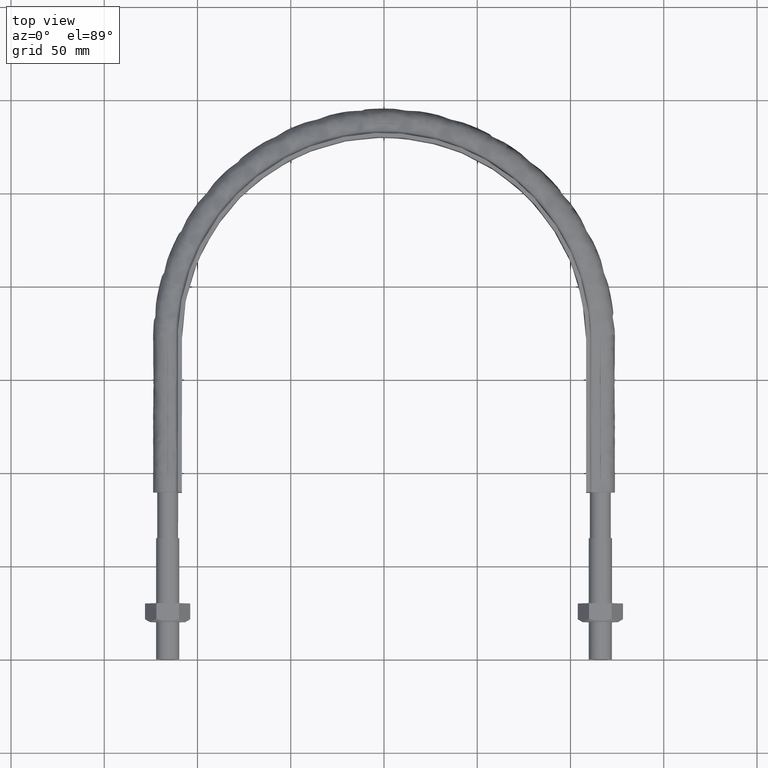
[diagram: clean part render]
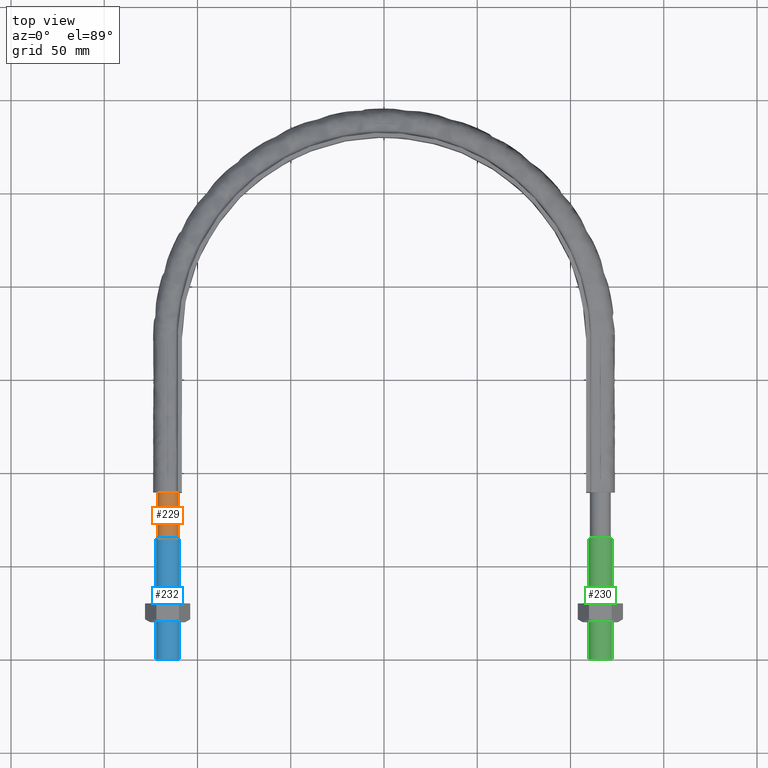
[diagram: same view with three faces highlighted in distinct colors, each labeled with its STEP entity id]
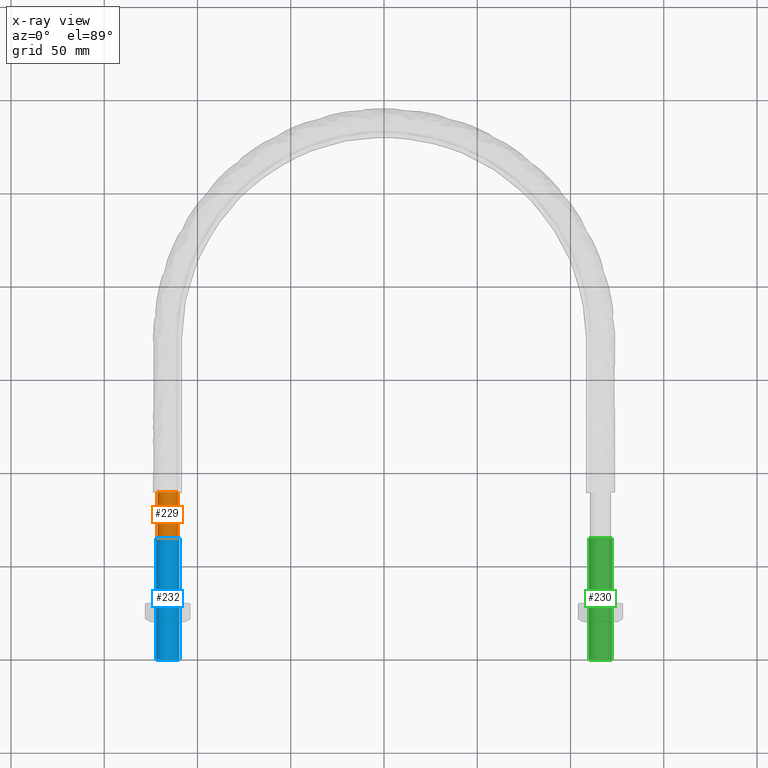
[diagram: x-ray of the same camera — body ghosted, the three highlighted faces saturated]
A machine part, top view with three faces highlighted in distinct colors.
The next image is the same camera in x-ray (body ghosted, the three faces saturated) — at least one of them is partly hidden behind the body in this view.
Their STEP definitions:

[orange] entity #229 — the highlighted cylindrical surface (bore or boss wall) has radius 5.6 mm, axis along (0, 1, -0).
#229 = ADVANCED_FACE( '', ( #285, #286 ), #287, .T. );
#285 = FACE_OUTER_BOUND( '', #1286, .T. );
#286 = FACE_OUTER_BOUND( '', #1287, .T. );
#287 = CYLINDRICAL_SURFACE( '', #1288, 5.59999999999999 );
#1286 = EDGE_LOOP( '', ( #1453 ) );
#1287 = EDGE_LOOP( '', ( #1454, #1455, #1456, #1457, #1458, #1459, #1460, #1461 ) );
#1288 = AXIS2_PLACEMENT_3D( '', #1462, #1463, #1464 );
#1453 = ORIENTED_EDGE( '', *, *, #1685, .F. );
#1454 = ORIENTED_EDGE( '', *, *, #1684, .F. );
#1455 = ORIENTED_EDGE( '', *, *, #1683, .F. );
#1456 = ORIENTED_EDGE( '', *, *, #1682, .F. );
#1457 = ORIENTED_EDGE( '', *, *, #1681, .F. );
#1458 = ORIENTED_EDGE( '', *, *, #1680, .F. );
#1459 = ORIENTED_EDGE( '', *, *, #1679, .F. );
#1460 = ORIENTED_EDGE( '', *, *, #1678, .F. );
#1461 = ORIENTED_EDGE( '', *, *, #1677, .F. );
#1462 = CARTESIAN_POINT( '', ( -116.000000000000, 89.5000000000000, -2.74005671667757E-014 ) );
#1463 = DIRECTION( '', ( 2.44921270764475E-016, 1.00000000000000, -3.06151588455594E-016 ) );
#1464 = DIRECTION( '', ( 1.00000000000000, -2.44921270764475E-016, -1.50944387002457E-047 ) );
#1677 = EDGE_CURVE( '', #1779, #1780, #1781, .T. );
#1678 = EDGE_CURVE( '', #1780, #1782, #1783, .T. );
#1679 = EDGE_CURVE( '', #1782, #1784, #1785, .T. );
#1680 = EDGE_CURVE( '', #1784, #1786, #1787, .T. );
#1681 = EDGE_CURVE( '', #1786, #1788, #1789, .T. );
#1682 = EDGE_CURVE( '', #1788, #1790, #1791, .T. );
#1683 = EDGE_CURVE( '', #1790, #1792, #1793, .T. );
#1684 = EDGE_CURVE( '', #1792, #1779, #1794, .T. );
#1685 = EDGE_CURVE( '', #1795, #1795, #1796, .F. );
#1779 = VERTEX_POINT( '', #2101 );
#1780 = VERTEX_POINT( '', #2102 );
#1781 = B_SPLINE_CURVE_WITH_KNOTS( '', 3, ( #2103, #2104, #2105, #2106 ), .UNSPECIFIED., .F., .F., ( 4, 4 ), ( 0.000000000000000, 1.00000000000000 ), .UNSPECIFIED. );
#1782 = VERTEX_POINT( '', #2107 );
#1783 = B_SPLINE_CURVE_WITH_KNOTS( '', 3, ( #2108, #2109, #2110, #2111 ), .UNSPECIFIED., .F., .F., ( 4, 4 ), ( 0.000000000000000, 1.00000000000000 ), .UNSPECIFIED. );
#1784 = VERTEX_POINT( '', #2112 );
#1785 = B_SPLINE_CURVE_WITH_KNOTS( '', 3, ( #2113, #2114, #2115, #2116 ), .UNSPECIFIED., .F., .F., ( 4, 4 ), ( 0.000000000000000, 1.00000000000000 ), .UNSPECIFIED. );
#1786 = VERTEX_POINT( '', #2117 );
#1787 = B_SPLINE_CURVE_WITH_KNOTS( '', 3, ( #2118, #2119, #2120, #2121 ), .UNSPECIFIED., .F., .F., ( 4, 4 ), ( 0.000000000000000, 1.00000000000000 ), .UNSPECIFIED. );
#1788 = VERTEX_POINT( '', #2122 );
#1789 = B_SPLINE_CURVE_WITH_KNOTS( '', 3, ( #2123, #2124, #2125, #2126 ), .UNSPECIFIED., .F., .F., ( 4, 4 ), ( 0.000000000000000, 1.00000000000000 ), .UNSPECIFIED. );
#1790 = VERTEX_POINT( '', #2127 );
#1791 = B_SPLINE_CURVE_WITH_KNOTS( '', 3, ( #2128, #2129, #2130, #2131 ), .UNSPECIFIED., .F., .F., ( 4, 4 ), ( 0.000000000000000, 1.00000000000000 ), .UNSPECIFIED. );
#1792 = VERTEX_POINT( '', #2132 );
#1793 = B_SPLINE_CURVE_WITH_KNOTS( '', 3, ( #2133, #2134, #2135, #2136 ), .UNSPECIFIED., .F., .F., ( 4, 4 ), ( 0.000000000000000, 1.00000000000000 ), .UNSPECIFIED. );
#1794 = B_SPLINE_CURVE_WITH_KNOTS( '', 3, ( #2137, #2138, #2139, #2140 ), .UNSPECIFIED., .F., .F., ( 4, 4 ), ( 0.000000000000000, 1.00000000000000 ), .UNSPECIFIED. );
#1795 = VERTEX_POINT( '', #2141 );
#1796 = CIRCLE( '', #2142, 5.59999999999999 );
#2101 = CARTESIAN_POINT( '', ( -110.400000000000, 89.5000000000002, 6.88494635144106E-014 ) );
#2102 = CARTESIAN_POINT( '', ( -112.040202025355, 89.5000000000000, -3.95979797464440 ) );
#2103 = CARTESIAN_POINT( '', ( -110.400000000000, 89.5000000000004, 1.11347563114261E-013 ) );
#2104 = CARTESIAN_POINT( '', ( -110.400000000000, 89.5000000000004, -1.46274169979680 ) );
#2105 = CARTESIAN_POINT( '', ( -111.005887450304, 89.5000000000004, -2.92548339959369 ) );
#2106 = CARTESIAN_POINT( '', ( -112.040202025355, 89.5000000000004, -3.95979797464444 ) );
#2107 = CARTESIAN_POINT( '', ( -116.000000000000, 89.5000000000000, -5.60000000000002 ) );
#2108 = CARTESIAN_POINT( '', ( -112.040202025379, 89.5000000000004, -3.95979797466840 ) );
#2109 = CARTESIAN_POINT( '', ( -113.074516600428, 89.5000000000004, -4.99411254970469 ) );
#2110 = CARTESIAN_POINT( '', ( -114.537258300214, 89.5000000000004, -5.59999999999999 ) );
#2111 = CARTESIAN_POINT( '', ( -116.000000000000, 89.5000000000004, -5.59999999999999 ) );
#2112 = CARTESIAN_POINT( '', ( -119.959797974650, 89.5000000000000, -3.95979797463928 ) );
#2113 = CARTESIAN_POINT( '', ( -116.000000000008, 89.5000000000004, -5.60000000000007 ) );
#2114 = CARTESIAN_POINT( '', ( -117.462741699804, 89.5000000000004, -5.59999999999810 ) );
#2115 = CARTESIAN_POINT( '', ( -118.925483399600, 89.5000000000004, -4.99411254969220 ) );
#2116 = CARTESIAN_POINT( '', ( -119.959797974650, 89.5000000000004, -3.95979797463943 ) );
#2117 = CARTESIAN_POINT( '', ( -121.600000000000, 89.5000000000000, 1.22458835622041E-014 ) );
#2118 = CARTESIAN_POINT( '', ( -119.959797974664, 89.5000000000004, -3.95979797462534 ) );
#2119 = CARTESIAN_POINT( '', ( -120.994112549707, 89.5000000000004, -2.92548339957262 ) );
#2120 = CARTESIAN_POINT( '', ( -121.600000000005, 89.5000000000004, -1.46274169977786 ) );
#2121 = CARTESIAN_POINT( '', ( -121.600000000000, 89.5000000000004, 1.81416133777800E-011 ) );
#2122 = CARTESIAN_POINT( '', ( -119.959797974644, 89.5000000000000, 3.95979797464519 ) );
#2123 = CARTESIAN_POINT( '', ( -121.600000000000, 89.5000000000004, 1.91595936048874E-011 ) );
#2124 = CARTESIAN_POINT( '', ( -121.599999999995, 89.5000000000004, 1.46274169981000 ) );
#2125 = CARTESIAN_POINT( '', ( -120.994112549691, 89.5000000000004, 2.92548339959904 ) );
#2126 = CARTESIAN_POINT( '', ( -119.959797974644, 89.5000000000004, 3.95979797464542 ) );
#2127 = CARTESIAN_POINT( '', ( -116.000000000000, 89.5000000000000, 5.59999999999997 ) );
#2128 = CARTESIAN_POINT( '', ( -119.959797974644, 89.5000000000004, 3.95979797464542 ) );
#2129 = CARTESIAN_POINT( '', ( -118.925483399593, 89.5000000000004, 4.99411254969572 ) );
#2130 = CARTESIAN_POINT( '', ( -117.462741699797, 89.5000000000004, 5.60000000000000 ) );
#2131 = CARTESIAN_POINT( '', ( -116.000000000000, 89.5000000000004, 5.59999999999999 ) );
#2132 = CARTESIAN_POINT( '', ( -112.040202025356, 89.5000000000000, 3.95979797464564 ) );
#2133 = CARTESIAN_POINT( '', ( -116.000000000000, 89.5000000000004, 5.59999999999998 ) );
#2134 = CARTESIAN_POINT( '', ( -114.537258300204, 89.5000000000004, 5.60000000000007 ) );
#2135 = CARTESIAN_POINT( '', ( -113.074516600407, 89.5000000000004, 4.99411254969574 ) );
#2136 = CARTESIAN_POINT( '', ( -112.040202025356, 89.5000000000004, 3.95979797464551 ) );
#2137 = CARTESIAN_POINT( '', ( -112.040202025356, 89.5000000000004, 3.95979797464548 ) );
#2138 = CARTESIAN_POINT( '', ( -111.005887450305, 89.5000000000004, 2.92548339959468 ) );
#2139 = CARTESIAN_POINT( '', ( -110.400000000000, 89.5000000000004, 1.46274169979734 ) );
#2140 = CARTESIAN_POINT( '', ( -110.400000000000, 89.5000000000004, -1.08420217248550E-016 ) );
#2141 = CARTESIAN_POINT( '', ( -116.000000000000, 65.0000000000000, 5.59999999999997 ) );
#2142 = AXIS2_PLACEMENT_3D( '', #2397, #2398, #2399 );
#2397 = CARTESIAN_POINT( '', ( -116.000000000000, 65.0000000000000, -1.98998532496136E-014 ) );
#2398 = DIRECTION( '', ( 2.09140834898085E-079, 1.00000000000000, 3.37423662409982E-032 ) );
#2399 = DIRECTION( '', ( 0.000000000000000, -3.37423662409982E-032, 1.00000000000000 ) );

[blue] entity #232 — the highlighted cylindrical surface (bore or boss wall) has radius 6.25 mm, axis along (-0, -1, 0).
#232 = ADVANCED_FACE( '', ( #293, #294 ), #295, .T. );
#293 = FACE_OUTER_BOUND( '', #1294, .T. );
#294 = FACE_OUTER_BOUND( '', #1295, .T. );
#295 = CYLINDRICAL_SURFACE( '', #1296, 6.24999999999996 );
#1294 = EDGE_LOOP( '', ( #1474 ) );
#1295 = EDGE_LOOP( '', ( #1475 ) );
#1296 = AXIS2_PLACEMENT_3D( '', #1476, #1477, #1478 );
#1474 = ORIENTED_EDGE( '', *, *, #1687, .T. );
#1475 = ORIENTED_EDGE( '', *, *, #1688, .F. );
#1476 = CARTESIAN_POINT( '', ( -116.000000000000, 370.000000000000, 0.000000000000000 ) );
#1477 = DIRECTION( '', ( -1.83690953073357E-016, -1.00000000000000, 0.000000000000000 ) );
#1478 = DIRECTION( '', ( -1.00000000000000, 1.83690953073357E-016, 0.000000000000000 ) );
#1687 = EDGE_CURVE( '', #1799, #1799, #1800, .F. );
#1688 = EDGE_CURVE( '', #1801, #1801, #1802, .T. );
#1799 = VERTEX_POINT( '', #2145 );
#1800 = CIRCLE( '', #2146, 6.24999999999996 );
#1801 = VERTEX_POINT( '', #2147 );
#1802 = CIRCLE( '', #2148, 6.24999999999996 );
#2145 = CARTESIAN_POINT( '', ( -116.000000000000, 5.35977038034104E-014, -6.24999999999996 ) );
#2146 = AXIS2_PLACEMENT_3D( '', #2403, #2404, #2405 );
#2147 = CARTESIAN_POINT( '', ( -116.000000000000, 65.0000000000000, 6.24999999999996 ) );
#2148 = AXIS2_PLACEMENT_3D( '', #2406, #2407, #2408 );
#2403 = CARTESIAN_POINT( '', ( -116.000000000000, 5.55111512312578E-014, 0.000000000000000 ) );
#2404 = DIRECTION( '', ( -2.44921270764476E-016, -1.00000000000000, 3.06151588455594E-016 ) );
#2405 = DIRECTION( '', ( 0.000000000000000, -3.06151588455594E-016, -1.00000000000000 ) );
#2406 = CARTESIAN_POINT( '', ( -116.000000000000, 65.0000000000000, 0.000000000000000 ) );
#2407 = DIRECTION( '', ( 2.09140834898085E-079, 1.00000000000000, 3.37423662409982E-032 ) );
#2408 = DIRECTION( '', ( 0.000000000000000, -3.37423662409982E-032, 1.00000000000000 ) );

[green] entity #230 — the highlighted cylindrical surface (bore or boss wall) has radius 6.25 mm, axis along (-0, -1, 0).
#230 = ADVANCED_FACE( '', ( #288, #289 ), #290, .T. );
#288 = FACE_OUTER_BOUND( '', #1289, .T. );
#289 = FACE_OUTER_BOUND( '', #1290, .T. );
#290 = CYLINDRICAL_SURFACE( '', #1291, 6.25000000000003 );
#1289 = EDGE_LOOP( '', ( #1465 ) );
#1290 = EDGE_LOOP( '', ( #1466 ) );
#1291 = AXIS2_PLACEMENT_3D( '', #1467, #1468, #1469 );
#1465 = ORIENTED_EDGE( '', *, *, #1686, .F. );
#1466 = ORIENTED_EDGE( '', *, *, #1676, .T. );
#1467 = CARTESIAN_POINT( '', ( 116.000000000000, 370.000000000000, 0.000000000000000 ) );
#1468 = DIRECTION( '', ( -1.83690953073357E-016, -1.00000000000000, 0.000000000000000 ) );
#1469 = DIRECTION( '', ( -1.00000000000000, 1.83690953073357E-016, 0.000000000000000 ) );
#1676 = EDGE_CURVE( '', #1777, #1777, #1778, .F. );
#1686 = EDGE_CURVE( '', #1797, #1797, #1798, .F. );
#1777 = VERTEX_POINT( '', #2099 );
#1778 = CIRCLE( '', #2100, 6.25000000000003 );
#1797 = VERTEX_POINT( '', #2143 );
#1798 = CIRCLE( '', #2144, 6.25000000000003 );
#2099 = CARTESIAN_POINT( '', ( 116.000000000000, -5.74245986591053E-014, -6.25000000000003 ) );
#2100 = AXIS2_PLACEMENT_3D( '', #2394, #2395, #2396 );
#2143 = CARTESIAN_POINT( '', ( 122.250000000000, 65.0000000000000, 0.000000000000000 ) );
#2144 = AXIS2_PLACEMENT_3D( '', #2400, #2401, #2402 );
#2394 = CARTESIAN_POINT( '', ( 116.000000000000, -5.55111512312578E-014, 0.000000000000000 ) );
#2395 = DIRECTION( '', ( -2.44921270764475E-016, -1.00000000000000, 3.06151588455594E-016 ) );
#2396 = DIRECTION( '', ( 0.000000000000000, -3.06151588455594E-016, -1.00000000000000 ) );
#2400 = CARTESIAN_POINT( '', ( 116.000000000000, 65.0000000000000, 0.000000000000000 ) );
#2401 = DIRECTION( '', ( -1.83690953073357E-016, -1.00000000000000, 0.000000000000000 ) );
#2402 = DIRECTION( '', ( 1.00000000000000, -1.83690953073357E-016, 0.000000000000000 ) );